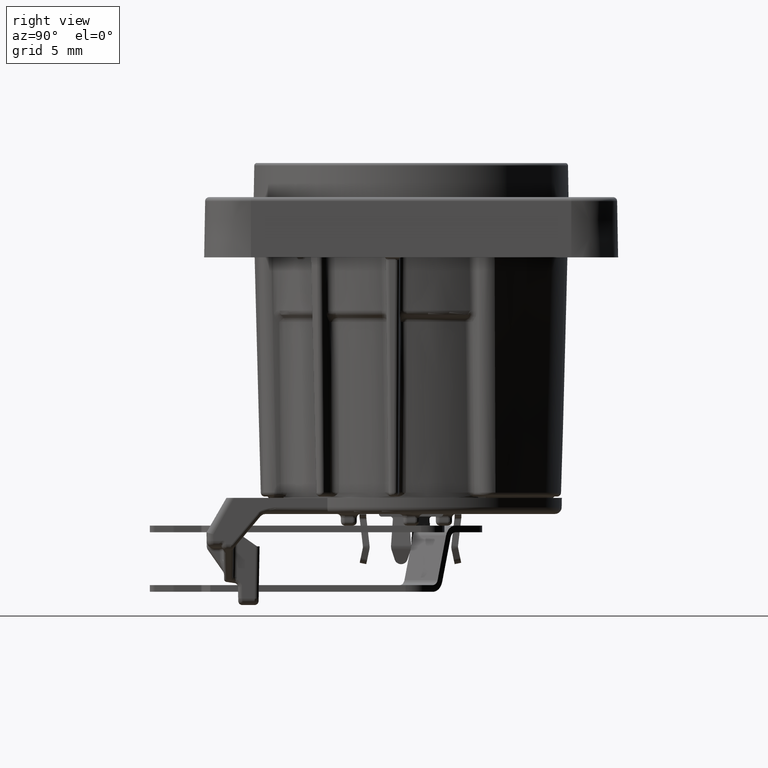
[diagram: clean part render]
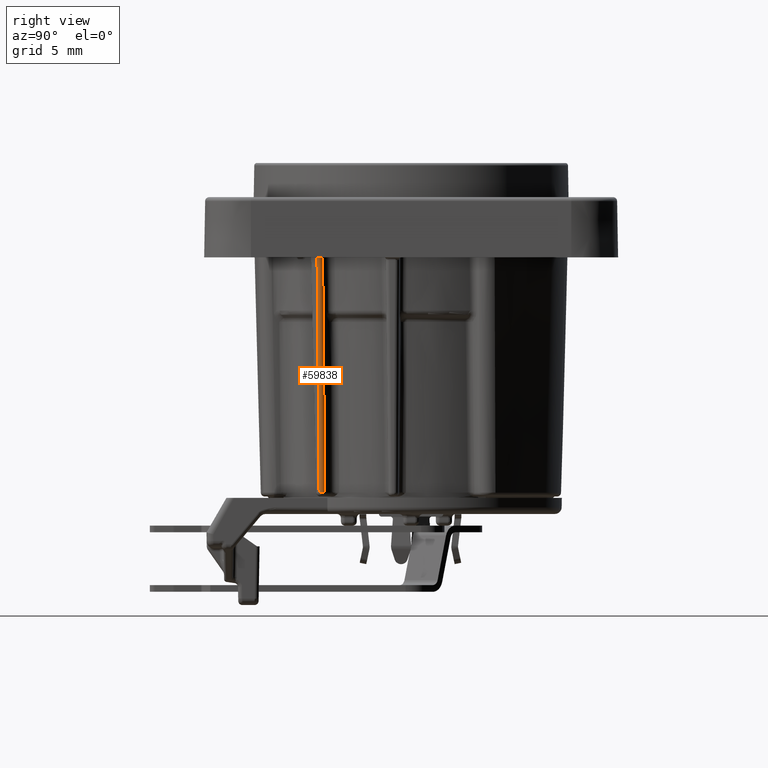
[diagram: same view with one face highlighted and labeled with its STEP entity id]
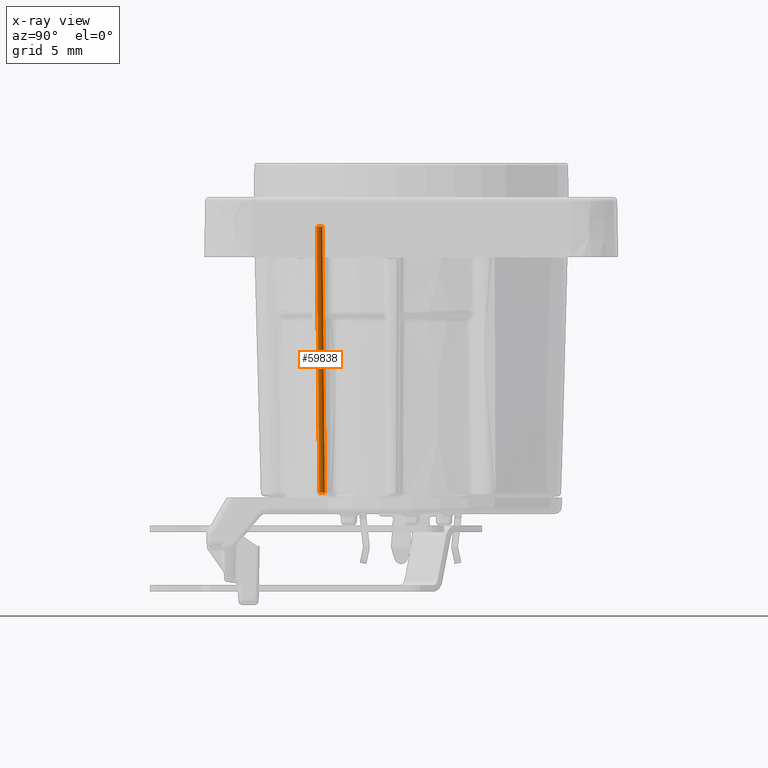
[diagram: x-ray of the same camera — body ghosted, the highlighted face saturated]
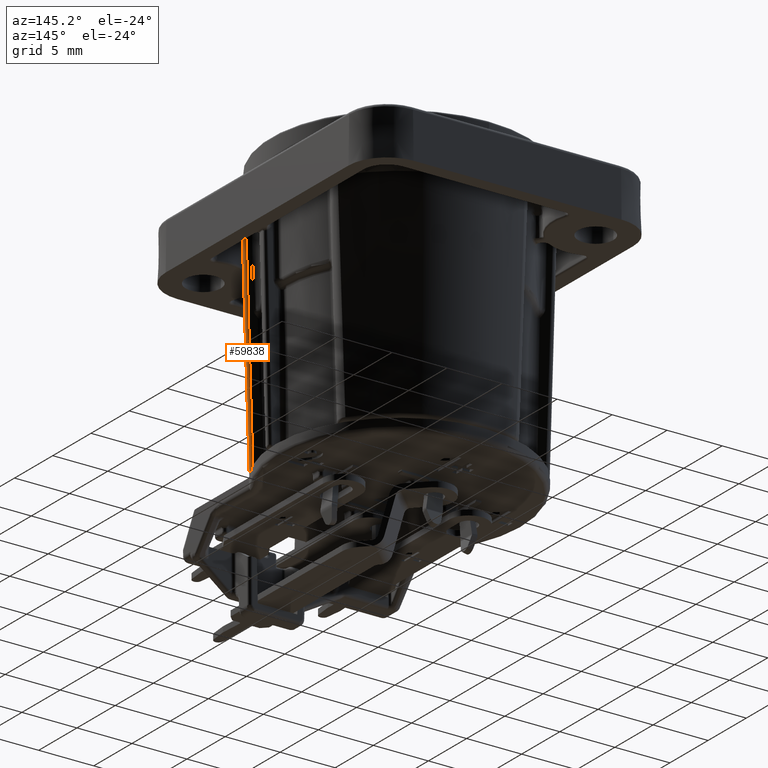
[diagram: same view with one face highlighted and labeled with its STEP entity id]
A machine part, right view. The second image highlights one B-rep face of the part: STEP entity #59838.
The next image is the same camera in x-ray: the body ghosted, the highlighted face saturated — about 0% of this face is hidden behind the body in this view.
A second angle (auxiliary view) of the same face is appended — the face is thin or edge-on in the first view.
In plain terms, the highlighted face is a freeform B-spline surface patch.
Its self-contained STEP definition (entity closure, byte-faithful):
#12961=CARTESIAN_POINT('',(9.397539807328E0,-7.044779588680E0,
2.305235389599E0));
#12962=CARTESIAN_POINT('',(9.358701472136E0,-7.031384019681E0,
8.116502736904E-1));
#12963=CARTESIAN_POINT('',(9.279252585592E0,-7.003974318496E0,
-2.242287287136E0));
#12964=CARTESIAN_POINT('',(9.156056435515E0,-6.961447307965E0,
-6.973170419612E0));
#12965=CARTESIAN_POINT('',(9.024885137040E0,-6.916139243392E0,
-1.200500164933E1));
#12966=CARTESIAN_POINT('',(8.929436421552E0,-6.883147153136E0,
-1.566213670334E1));
#12967=CARTESIAN_POINT('',(8.879924977689E0,-6.866026388762E0,
-1.755785308426E1));
#21622=CARTESIAN_POINT('',(9.342046336867E0,-6.628422453505E0,
2.301745307100E0));
#21623=CARTESIAN_POINT('',(9.303417725975E0,-6.614775924652E0,
8.088229437885E-1));
#21624=CARTESIAN_POINT('',(9.224402108837E0,-6.586848307781E0,
-2.243773891874E0));
#21625=CARTESIAN_POINT('',(9.101891435971E0,-6.543502749718E0,
-6.972656775736E0));
#21626=CARTESIAN_POINT('',(8.971468642088E0,-6.497306699262E0,
-1.200233136421E1));
#21627=CARTESIAN_POINT('',(8.876582196947E0,-6.463655844431E0,
-1.565778875097E1));
#21628=CARTESIAN_POINT('',(8.827367392578E0,-6.446189413923E0,
-1.755261796065E1));
#21677=CARTESIAN_POINT('',(8.642675982739E0,-6.682583638498E0,
-1.754999999970E1));
#21678=DIRECTION('',(2.596335637723E-2,-9.214446568020E-3,9.996204270122E-1));
#21679=DIRECTION('',(7.908299868323E-1,-6.114758370582E-1,-2.617694827260E-2));
#21680=AXIS2_PLACEMENT_3D('',#21677,#21678,#21679);
#21682=CARTESIAN_POINT('',(9.342046336867E0,-6.628422453505E0,
2.301745307100E0));
#21683=CARTESIAN_POINT('',(9.350197575460E0,-6.634788962443E0,
2.301924328479E0));
#21684=CARTESIAN_POINT('',(9.365836599956E0,-6.648364712946E0,
2.302276689953E0));
#21685=CARTESIAN_POINT('',(9.386990833231E0,-6.670929907768E0,
2.302778251435E0));
#21686=CARTESIAN_POINT('',(9.405850885892E0,-6.695743536702E0,
2.303254295531E0));
#21687=CARTESIAN_POINT('',(9.421983790813E0,-6.722286821485E0,
2.303693740018E0));
#21688=CARTESIAN_POINT('',(9.435269068958E0,-6.750285934233E0,
2.304093043106E0));
#21689=CARTESIAN_POINT('',(9.445595121169E0,-6.779477471917E0,
2.304448600485E0));
#21690=CARTESIAN_POINT('',(9.452872319236E0,-6.809621669018E0,
2.304757437933E0));
#21691=CARTESIAN_POINT('',(9.457002013966E0,-6.840362299474E0,
2.305015677367E0));
#21692=CARTESIAN_POINT('',(9.457939907073E0,-6.871318386241E0,
2.305220240967E0));
#21693=CARTESIAN_POINT('',(9.455691204760E0,-6.902183584269E0,
2.305369351572E0));
#21694=CARTESIAN_POINT('',(9.450259124907E0,-6.932743246872E0,
2.305461760129E0));
#21695=CARTESIAN_POINT('',(9.441686213655E0,-6.962606520407E0,
2.305495823899E0));
#21696=CARTESIAN_POINT('',(9.430090690473E0,-6.991405833063E0,
2.305471317993E0));
#21697=CARTESIAN_POINT('',(9.415435108971E0,-7.019102204222E0,
2.305387451686E0));
#21698=CARTESIAN_POINT('',(9.403800095030E0,-7.036430962842E0,
2.305292377435E0));
#21699=CARTESIAN_POINT('',(9.397539807328E0,-7.044779588680E0,
2.305235389599E0));
#22934=CARTESIAN_POINT('',(9.342046336867E0,-6.628422453505E0,
2.301745307100E0));
#22935=VERTEX_POINT('',#22934);
#22937=VERTEX_POINT('',#21699);
#23201=CARTESIAN_POINT('',(8.879924976584E0,-6.866026387908E0,
-1.755785308449E1));
#23202=VERTEX_POINT('',#23201);
#23205=CARTESIAN_POINT('',(8.827367392583E0,-6.446189413924E0,
-1.755261796035E1));
#23206=VERTEX_POINT('',#23205);
#59802=CARTESIAN_POINT('',(9.342288327957E0,-6.628507942860E0,
2.311097810448E0));
#59803=CARTESIAN_POINT('',(9.301647454744E0,-6.614150560864E0,
7.404027016563E-1));
#59804=CARTESIAN_POINT('',(9.206811856437E0,-6.580630434751E0,
-2.923271974567E0));
#59805=CARTESIAN_POINT('',(9.052545083801E0,-6.526037025534E0,
-8.876830174599E0));
#59806=CARTESIAN_POINT('',(8.921510883749E0,-6.479594392834E0,
-1.392737247511E1));
#59807=CARTESIAN_POINT('',(8.844709226292E0,-6.452344064690E0,
-1.688493648777E1));
#59808=CARTESIAN_POINT('',(8.827367392578E0,-6.446189413923E0,
-1.755261796065E1));
#59809=CARTESIAN_POINT('',(9.480121918108E0,-6.736245747944E0,
2.306546634082E0));
#59810=CARTESIAN_POINT('',(9.439481003086E0,-6.721888351178E0,
7.358499094497E-1));
#59811=CARTESIAN_POINT('',(9.344645305651E0,-6.688368190027E0,
-2.927828596319E0));
#59812=CARTESIAN_POINT('',(9.190378365551E0,-6.633774721548E0,
-8.881393259308E0));
#59813=CARTESIAN_POINT('',(9.059344016552E0,-6.587332036057E0,
-1.393194130088E1));
#59814=CARTESIAN_POINT('',(8.982542268959E0,-6.560081675932E0,
-1.688950878458E1));
#59815=CARTESIAN_POINT('',(8.965200414745E0,-6.553927017890E0,
-1.755719104674E1));
#59816=CARTESIAN_POINT('',(9.501858927533E0,-6.909880790761E0,
2.304397040705E0));
#59817=CARTESIAN_POINT('',(9.461217982870E0,-6.895523383523E0,
7.336991704979E-1));
#59818=CARTESIAN_POINT('',(9.366382215156E0,-6.862003197533E0,
-2.929982050283E0));
#59819=CARTESIAN_POINT('',(9.212115156330E0,-6.807409687038E0,
-8.883551295281E0));
#59820=CARTESIAN_POINT('',(9.081080701732E0,-6.760966964121E0,
-1.393410340706E1));
#59821=CARTESIAN_POINT('',(9.004278890236E0,-6.733716581322E0,
-1.689167335161E1));
#59822=CARTESIAN_POINT('',(8.986937021489E0,-6.727561918122E0,
-1.755935617334E1));
#59823=CARTESIAN_POINT('',(9.394846887816E0,-7.048345263307E0,
2.305900244859E0));
#59824=CARTESIAN_POINT('',(9.354205942933E0,-7.033987855991E0,
7.352023661489E-1));
#59825=CARTESIAN_POINT('',(9.259370174697E0,-7.000467669817E0,
-2.928478874784E0));
#59826=CARTESIAN_POINT('',(9.105103114990E0,-6.945874159010E0,
-8.882048153792E0));
#59827=CARTESIAN_POINT('',(8.974068659609E0,-6.899431435815E0,
-1.393260029578E1));
#59828=CARTESIAN_POINT('',(8.897266847638E0,-6.872181052848E0,
-1.689017025860E1));
#59829=CARTESIAN_POINT('',(8.879924978783E0,-6.866026389610E0,
-1.755785308448E1));
#59830=(BOUNDED_SURFACE()B_SPLINE_SURFACE(3,3,((#59802,#59803,#59804,#59805,
#59806,#59807,#59808),(#59809,#59810,#59811,#59812,#59813,#59814,#59815),
(#59816,#59817,#59818,#59819,#59820,#59821,#59822),(#59823,#59824,#59825,#59826,
#59827,#59828,#59829)),.UNSPECIFIED.,.F.,.F.,.F.)B_SPLINE_SURFACE_WITH_KNOTS((4,
4),(4,1,1,1,4),(0.E0,1.E0),(4.096314179619E-1,4.606662972666E-1,
5.286712386517E-1,6.030741212104E-1,6.247684382857E-1),.UNSPECIFIED.)GEOMETRIC_REPRESENTATION_ITEM()RATIONAL_B_SPLINE_SURFACE(((1.170299097752E0,
1.170299097752E0,1.170299097752E0,1.170299097752E0,1.170299097752E0,
1.170299097752E0,1.170299097752E0),(9.432336340828E-1,9.432336340828E-1,
9.432336340828E-1,9.432336340828E-1,9.432336340828E-1,9.432336340828E-1,
9.432336340828E-1),(9.432336340828E-1,9.432336340828E-1,9.432336340828E-1,
9.432336340828E-1,9.432336340828E-1,9.432336340828E-1,9.432336340828E-1),(
1.170299097752E0,1.170299097752E0,1.170299097752E0,1.170299097752E0,
1.170299097752E0,1.170299097752E0,1.170299097752E0)))REPRESENTATION_ITEM('')SURFACE());
#59832=ORIENTED_EDGE('',*,*,#59831,.F.);
#59833=ORIENTED_EDGE('',*,*,#45313,.F.);
#59834=ORIENTED_EDGE('',*,*,#46064,.F.);
#59835=ORIENTED_EDGE('',*,*,#59788,.T.);
#59836=EDGE_LOOP('',(#59832,#59833,#59834,#59835));
#59837=FACE_OUTER_BOUND('',#59836,.F.);
#59838=ADVANCED_FACE('',(#59837),#59830,.T.);
#12968=B_SPLINE_CURVE_WITH_KNOTS('',3,(#12961,#12962,#12963,#12964,#12965,
#12966,#12967),.UNSPECIFIED.,.F.,.F.,(4,1,1,1,4),(0.E0,2.5E-1,5.E-1,7.5E-1,
1.E0),.UNSPECIFIED.);
#21629=B_SPLINE_CURVE_WITH_KNOTS('',3,(#21622,#21623,#21624,#21625,#21626,
#21627,#21628),.UNSPECIFIED.,.F.,.F.,(4,1,1,1,4),(0.E0,2.5E-1,5.E-1,7.5E-1,
1.E0),.UNSPECIFIED.);
#21681=CIRCLE('',#21680,3.E-1);
#21700=B_SPLINE_CURVE_WITH_KNOTS('',3,(#21682,#21683,#21684,#21685,#21686,
#21687,#21688,#21689,#21690,#21691,#21692,#21693,#21694,#21695,#21696,#21697,
#21698,#21699),.UNSPECIFIED.,.F.,.F.,(4,1,1,1,1,1,1,1,1,1,1,1,1,1,1,4),(0.E0,
6.666666666667E-2,1.333333333333E-1,2.E-1,2.666666666667E-1,3.333333333333E-1,
4.E-1,4.666666666667E-1,5.333333333333E-1,6.E-1,6.666666666667E-1,
7.333333333333E-1,8.E-1,8.666666666667E-1,9.333333333333E-1,1.E0),
.UNSPECIFIED.);
#45313=EDGE_CURVE('',#22937,#23202,#12968,.T.);
#46064=EDGE_CURVE('',#22935,#22937,#21700,.T.);
#59788=EDGE_CURVE('',#22935,#23206,#21629,.T.);
#59831=EDGE_CURVE('',#23202,#23206,#21681,.T.);